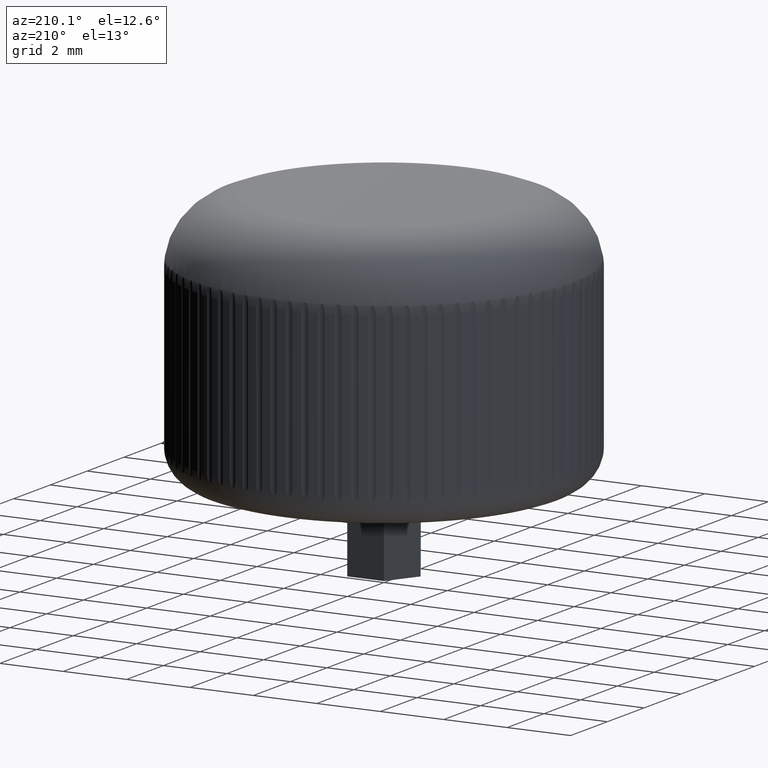
[diagram: clean part render]
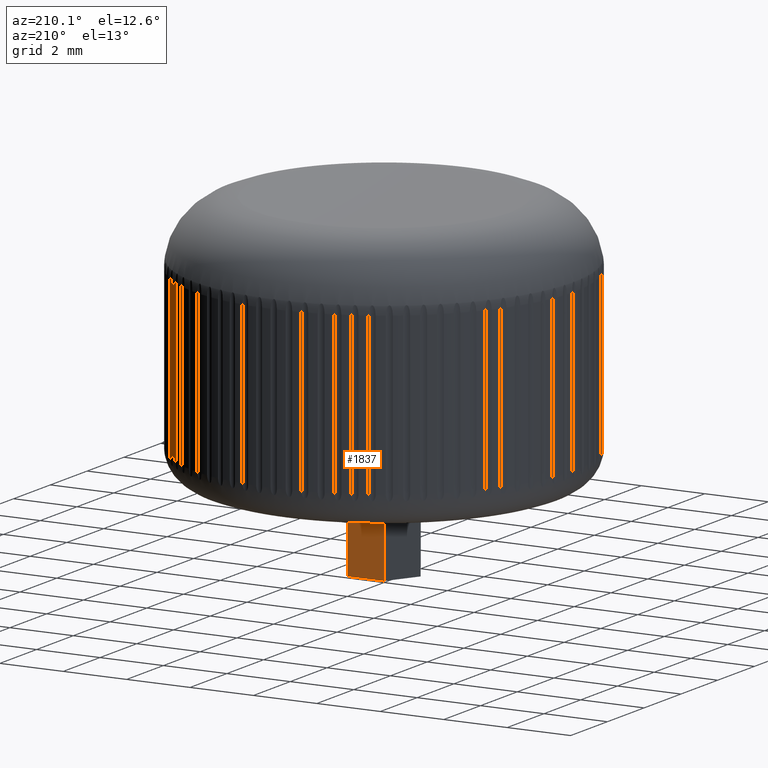
[diagram: same view with one face highlighted and labeled with its STEP entity id]
A machine part, auxiliary view. The second image highlights one B-rep face of the part: STEP entity #1837.
In plain terms, the highlighted planar face has unit normal (0, -1, 0).
Its self-contained STEP definition (entity closure, byte-faithful):
#171 = PLANE ( 'NONE',  #3193 ) ;
#270 = DIRECTION ( 'NONE',  ( 0.0000000000000000000, -1.000000000000000000, 0.0000000000000000000 ) ) ;
#726 = LINE ( 'NONE', #5013, #2928 ) ;
#851 = DIRECTION ( 'NONE',  ( 0.0000000000000000000, -0.0000000000000000000, -1.000000000000000000 ) ) ;
#916 = EDGE_CURVE ( 'NONE', #3289, #6286, #5504, .T. ) ;
#1028 = CARTESIAN_POINT ( 'NONE',  ( 0.5773502691896254000, 1.000000000000000000, -2.500000000000000000 ) ) ;
#1151 = CARTESIAN_POINT ( 'NONE',  ( 0.5773502691896252900, 1.000000000000000000, 0.0000000000000000000 ) ) ;
#1159 = VECTOR ( 'NONE', #2504, 1000.000000000000000 ) ;
#1231 = CARTESIAN_POINT ( 'NONE',  ( -0.5773502691896255100, 1.000000000000000000, 0.0000000000000000000 ) ) ;
#1339 = DIRECTION ( 'NONE',  ( 1.000000000000000000, 0.0000000000000000000, 0.0000000000000000000 ) ) ;
#1368 = CARTESIAN_POINT ( 'NONE',  ( -0.5773502691896255100, 1.000000000000000000, 0.0000000000000000000 ) ) ;
#1837 = ADVANCED_FACE ( 'NONE', ( #6061 ), #171, .F. ) ;
#2504 = DIRECTION ( 'NONE',  ( -0.0000000000000000000, -0.0000000000000000000, 1.000000000000000000 ) ) ;
#2523 = EDGE_LOOP ( 'NONE', ( #4162, #3349, #2827, #3779 ) ) ;
#2590 = DIRECTION ( 'NONE',  ( 1.000000000000000000, 0.0000000000000000000, 0.0000000000000000000 ) ) ;
#2827 = ORIENTED_EDGE ( 'NONE', *, *, #5466, .F. ) ;
#2928 = VECTOR ( 'NONE', #1339, 1000.000000000000000 ) ;
#3143 = CARTESIAN_POINT ( 'NONE',  ( -0.5773502691896255100, 1.000000000000000000, -2.500000000000000000 ) ) ;
#3193 = AXIS2_PLACEMENT_3D ( 'NONE', #7627, #270, #851 ) ;
#3225 = LINE ( 'NONE', #1368, #6221 ) ;
#3289 = VERTEX_POINT ( 'NONE', #5844 ) ;
#3349 = ORIENTED_EDGE ( 'NONE', *, *, #7833, .F. ) ;
#3779 = ORIENTED_EDGE ( 'NONE', *, *, #916, .T. ) ;
#4162 = ORIENTED_EDGE ( 'NONE', *, *, #4305, .T. ) ;
#4305 = EDGE_CURVE ( 'NONE', #6286, #6591, #3225, .T. ) ;
#5013 = CARTESIAN_POINT ( 'NONE',  ( -0.5773502691896255100, 1.000000000000000000, -2.500000000000000000 ) ) ;
#5020 = VERTEX_POINT ( 'NONE', #1028 ) ;
#5304 = VECTOR ( 'NONE', #7395, 1000.000000000000000 ) ;
#5466 = EDGE_CURVE ( 'NONE', #3289, #5020, #726, .T. ) ;
#5504 = LINE ( 'NONE', #3143, #5304 ) ;
#5844 = CARTESIAN_POINT ( 'NONE',  ( -0.5773502691896255100, 1.000000000000000000, -2.500000000000000000 ) ) ;
#6061 = FACE_OUTER_BOUND ( 'NONE', #2523, .T. ) ;
#6121 = CARTESIAN_POINT ( 'NONE',  ( 0.5773502691896254000, 1.000000000000000000, -2.500000000000000000 ) ) ;
#6221 = VECTOR ( 'NONE', #2590, 1000.000000000000000 ) ;
#6286 = VERTEX_POINT ( 'NONE', #1231 ) ;
#6438 = LINE ( 'NONE', #6121, #1159 ) ;
#6591 = VERTEX_POINT ( 'NONE', #1151 ) ;
#7395 = DIRECTION ( 'NONE',  ( -0.0000000000000000000, -0.0000000000000000000, 1.000000000000000000 ) ) ;
#7627 = CARTESIAN_POINT ( 'NONE',  ( -0.5773502691896255100, 1.000000000000000000, -2.500000000000000000 ) ) ;
#7833 = EDGE_CURVE ( 'NONE', #5020, #6591, #6438, .T. ) ;